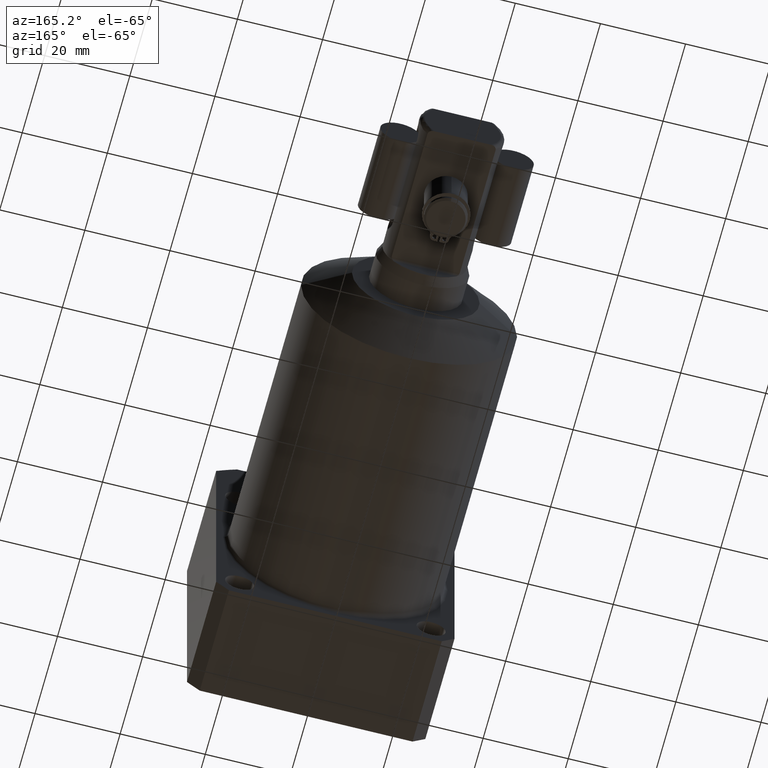
[diagram: clean part render]
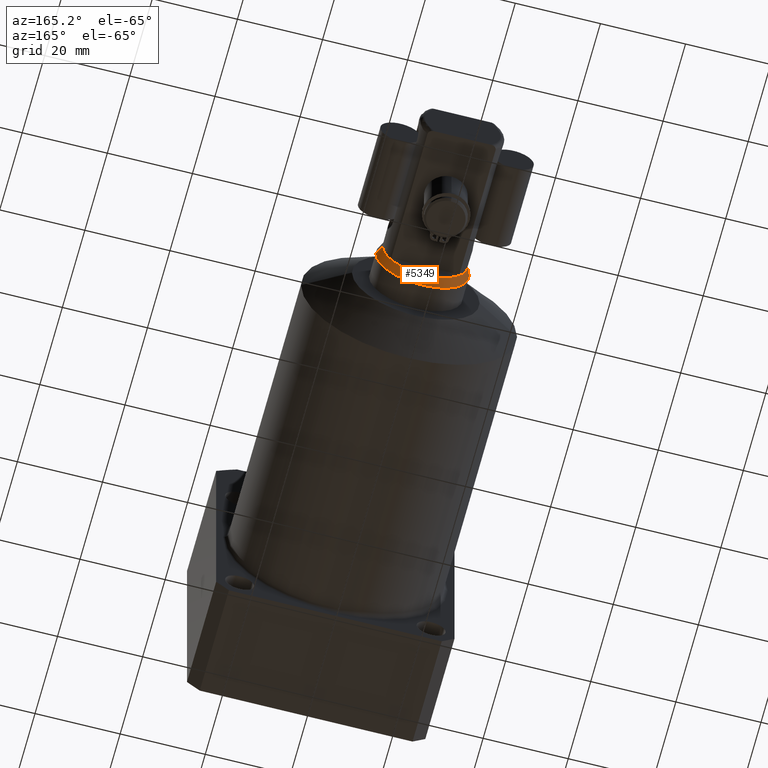
[diagram: same view with one face highlighted and labeled with its STEP entity id]
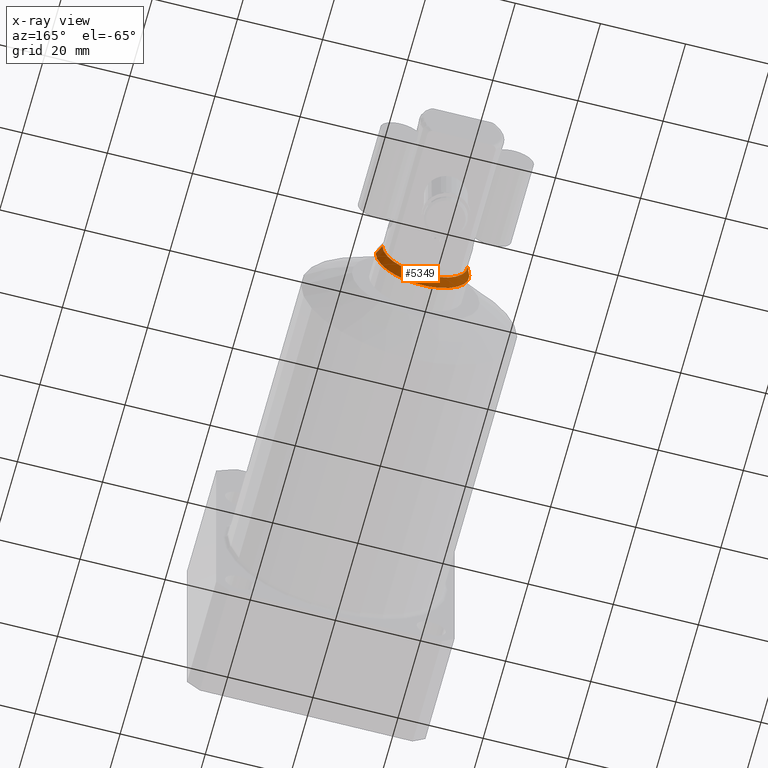
[diagram: x-ray of the same camera — body ghosted, the highlighted face saturated]
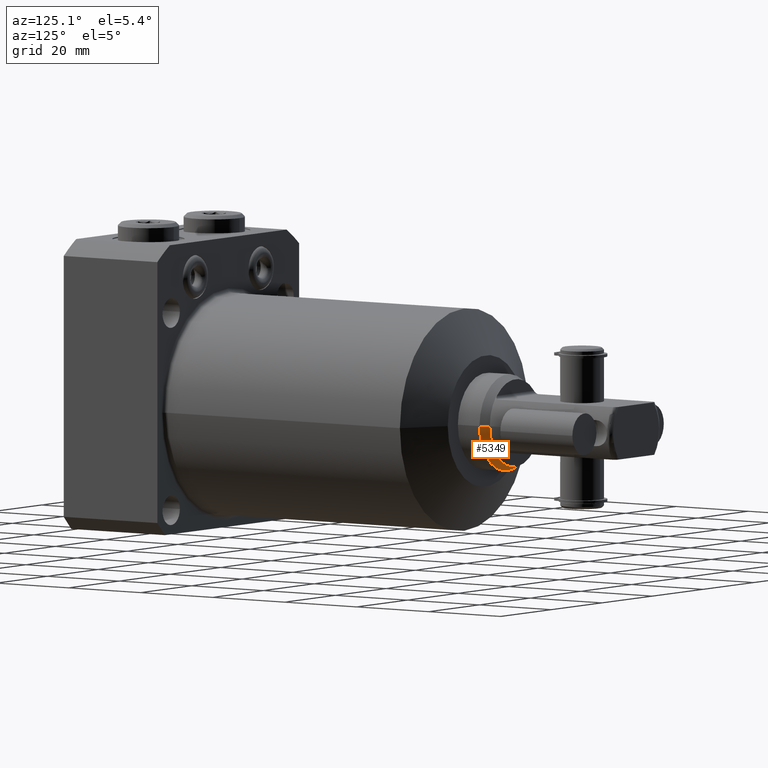
[diagram: same view with one face highlighted and labeled with its STEP entity id]
A machine part, auxiliary view. The second image highlights one B-rep face of the part: STEP entity #5349.
The next image is the same camera in x-ray: the body ghosted, the highlighted face saturated — about 0% of this face is hidden behind the body in this view.
A second angle (auxiliary view) of the same face is appended — the face is thin or edge-on in the first view.
In plain terms, the highlighted conical surface has half-angle 25 deg.
Its self-contained STEP definition (entity closure, byte-faithful):
#988=CARTESIAN_POINT('',(0.E0,7.964450692051E1,0.E0));
#989=DIRECTION('',(0.E0,1.E0,0.E0));
#990=DIRECTION('',(1.E0,0.E0,0.E0));
#991=AXIS2_PLACEMENT_3D('',#988,#989,#990);
#1425=DIRECTION('',(-4.226182617407E-1,9.063077870367E-1,0.E0));
#1426=VECTOR('',#1425,2.366201583153E0);
#1427=CARTESIAN_POINT('',(1.1E1,7.75E1,0.E0));
#1428=LINE('',#1427,#1426);
#1440=DIRECTION('',(4.226182617407E-1,9.063077870367E-1,0.E0));
#1441=VECTOR('',#1440,2.366201583153E0);
#1442=CARTESIAN_POINT('',(-1.1E1,7.75E1,0.E0));
#1443=LINE('',#1442,#1441);
#1447=CARTESIAN_POINT('',(0.E0,7.75E1,0.E0));
#1448=DIRECTION('',(0.E0,1.E0,0.E0));
#1449=DIRECTION('',(1.E0,0.E0,0.E0));
#1450=AXIS2_PLACEMENT_3D('',#1447,#1448,#1449);
#3927=CARTESIAN_POINT('',(1.1E1,7.75E1,0.E0));
#3928=CARTESIAN_POINT('',(1.E1,7.964450692051E1,0.E0));
#3929=VERTEX_POINT('',#3927);
#3930=VERTEX_POINT('',#3928);
#3931=CARTESIAN_POINT('',(-1.1E1,7.75E1,0.E0));
#3932=CARTESIAN_POINT('',(-1.E1,7.964450692051E1,0.E0));
#3933=VERTEX_POINT('',#3931);
#3934=VERTEX_POINT('',#3932);
#5337=CARTESIAN_POINT('',(0.E0,7.857225346025E1,0.E0));
#5338=DIRECTION('',(0.E0,-1.E0,0.E0));
#5339=DIRECTION('',(-1.E0,0.E0,0.E0));
#5340=AXIS2_PLACEMENT_3D('',#5337,#5338,#5339);
#5341=CONICAL_SURFACE('',#5340,1.05E1,2.5E1);
#5342=ORIENTED_EDGE('',*,*,#5327,.T.);
#5343=ORIENTED_EDGE('',*,*,#5130,.T.);
#5344=ORIENTED_EDGE('',*,*,#5331,.F.);
#5346=ORIENTED_EDGE('',*,*,#5345,.F.);
#5347=EDGE_LOOP('',(#5342,#5343,#5344,#5346));
#5348=FACE_OUTER_BOUND('',#5347,.F.);
#992=CIRCLE('',#991,1.E1);
#1451=CIRCLE('',#1450,1.1E1);
#5130=EDGE_CURVE('',#3930,#3934,#992,.T.);
#5327=EDGE_CURVE('',#3929,#3930,#1428,.T.);
#5331=EDGE_CURVE('',#3933,#3934,#1443,.T.);
#5345=EDGE_CURVE('',#3929,#3933,#1451,.T.);
#5349=ADVANCED_FACE('',(#5348),#5341,.T.);